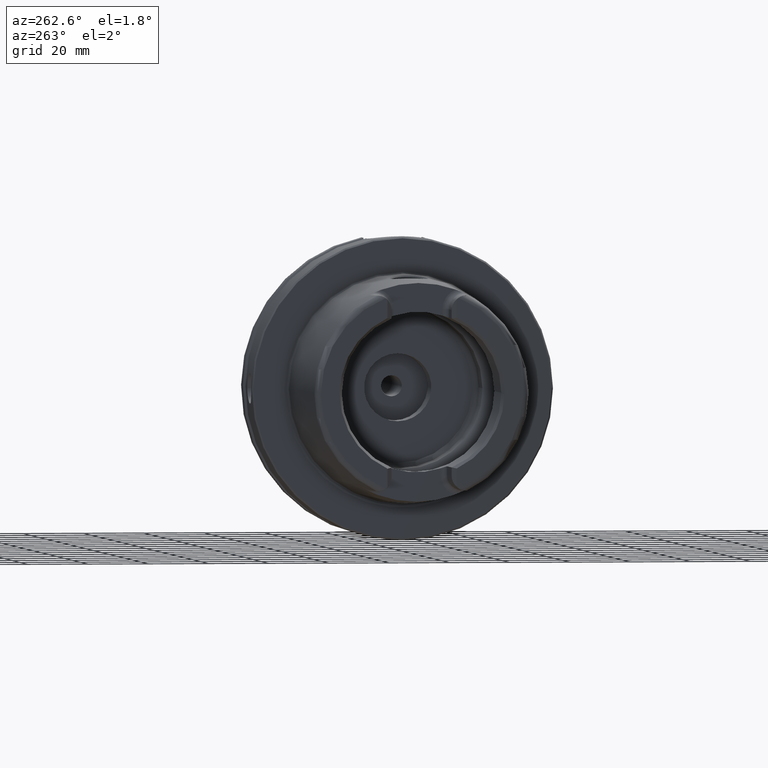
[diagram: clean part render]
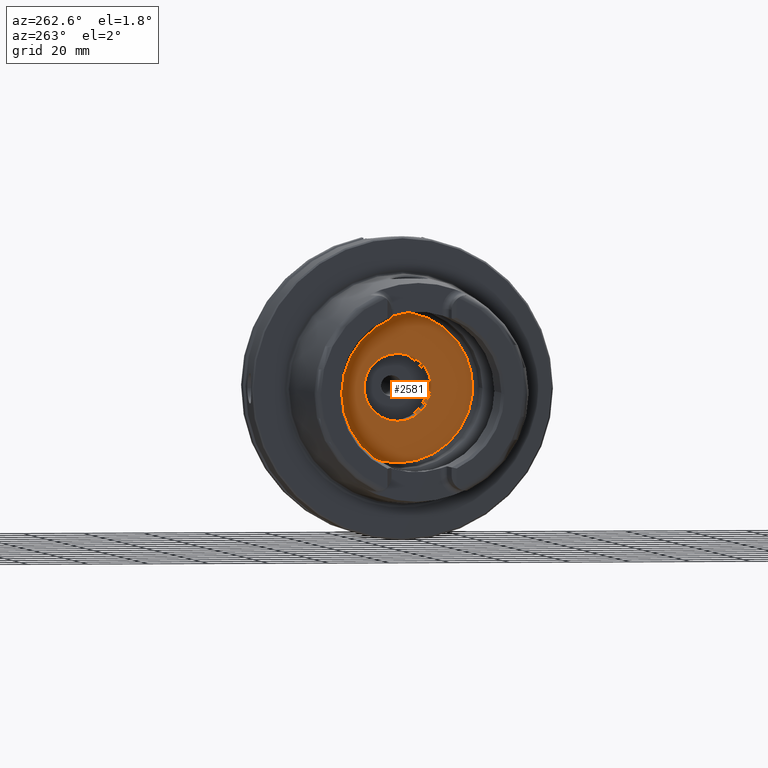
[diagram: same view with one face highlighted and labeled with its STEP entity id]
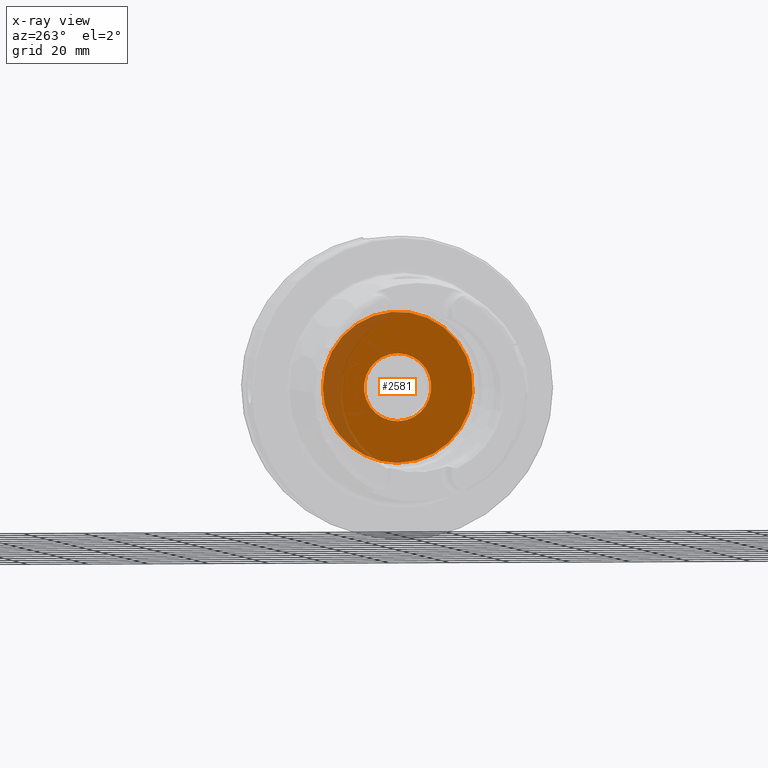
[diagram: x-ray of the same camera — body ghosted, the highlighted face saturated]
A machine part, auxiliary view. The second image highlights one B-rep face of the part: STEP entity #2581.
The next image is the same camera in x-ray: the body ghosted, the highlighted face saturated — about 19% of this face is hidden behind the body in this view.
In plain terms, the highlighted planar face has unit normal (1, 0, 0).
Its self-contained STEP definition (entity closure, byte-faithful):
#124=FACE_BOUND('',#675,.T.);
#160=PLANE('',#2926);
#534=FACE_OUTER_BOUND('',#674,.T.);
#674=EDGE_LOOP('',(#2316,#2317));
#675=EDGE_LOOP('',(#2318,#2319));
#880=CIRCLE('',#2920,11.188101);
#881=CIRCLE('',#2921,11.188101);
#885=CIRCLE('',#2927,24.9);
#886=CIRCLE('',#2928,24.9);
#1175=VERTEX_POINT('',#5422);
#1176=VERTEX_POINT('',#5423);
#1180=VERTEX_POINT('',#5435);
#1181=VERTEX_POINT('',#5436);
#1567=EDGE_CURVE('',#1175,#1176,#880,.T.);
#1568=EDGE_CURVE('',#1176,#1175,#881,.T.);
#1573=EDGE_CURVE('',#1180,#1181,#885,.T.);
#1574=EDGE_CURVE('',#1181,#1180,#886,.T.);
#2316=ORIENTED_EDGE('',*,*,#1573,.T.);
#2317=ORIENTED_EDGE('',*,*,#1574,.T.);
#2318=ORIENTED_EDGE('',*,*,#1567,.T.);
#2319=ORIENTED_EDGE('',*,*,#1568,.T.);
#2581=ADVANCED_FACE('',(#534,#124),#160,.F.);
#2920=AXIS2_PLACEMENT_3D('',#5424,#3684,#3685);
#2921=AXIS2_PLACEMENT_3D('',#5425,#3686,#3687);
#2926=AXIS2_PLACEMENT_3D('',#5434,#3697,#3698);
#2927=AXIS2_PLACEMENT_3D('',#5437,#3699,#3700);
#2928=AXIS2_PLACEMENT_3D('',#5438,#3701,#3702);
#3684=DIRECTION('center_axis',(1.,0.,0.));
#3685=DIRECTION('ref_axis',(0.,0.,1.));
#3686=DIRECTION('center_axis',(1.,0.,0.));
#3687=DIRECTION('ref_axis',(0.,0.,1.));
#3697=DIRECTION('center_axis',(1.,0.,0.));
#3698=DIRECTION('ref_axis',(0.,0.,-1.));
#3699=DIRECTION('center_axis',(-1.,0.,0.));
#3700=DIRECTION('ref_axis',(0.,0.,1.));
#3701=DIRECTION('center_axis',(-1.,0.,0.));
#3702=DIRECTION('ref_axis',(0.,0.,1.));
#5422=CARTESIAN_POINT('',(12.5,0.,11.188101));
#5423=CARTESIAN_POINT('',(12.5,-1.37014720781873E-15,-11.188101));
#5424=CARTESIAN_POINT('Origin',(12.5,0.,0.));
#5425=CARTESIAN_POINT('Origin',(12.5,0.,0.));
#5434=CARTESIAN_POINT('Origin',(12.5,24.9,0.));
#5435=CARTESIAN_POINT('',(12.5,24.9,0.));
#5436=CARTESIAN_POINT('',(12.5,-3.04937052987691E-15,-24.9));
#5437=CARTESIAN_POINT('Origin',(12.5,0.,0.));
#5438=CARTESIAN_POINT('Origin',(12.5,0.,0.));